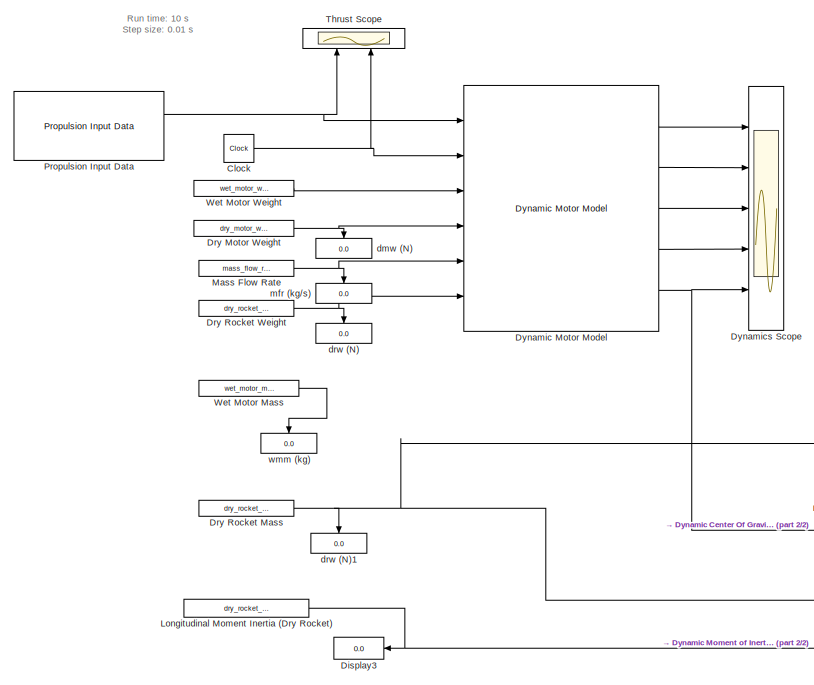
[diagram: root canvas - part 1/2, left side, full height]
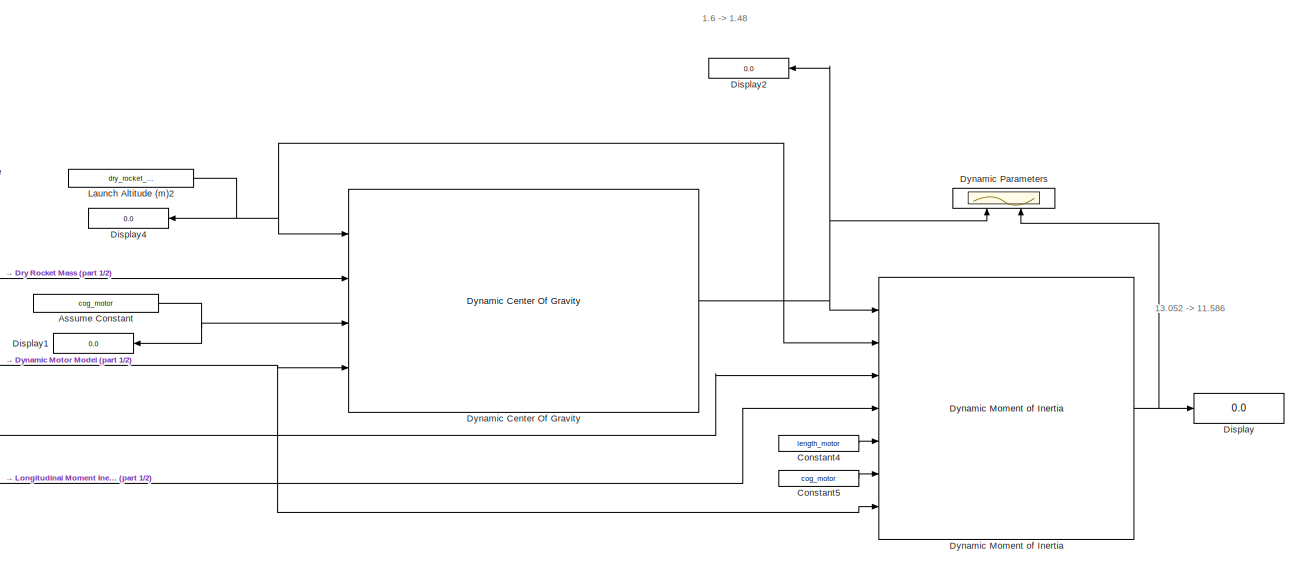
[diagram: root canvas - part 2/2, right side, full height]
MODEL slx_4fb8eae3f4b2
KIND model
CONFIG InitFcn = data_parametric_model
BLOCK [Constant] Assume Constant
  Value = cog_motor
BLOCK [Clock] Clock
  DisplayTime = on
BLOCK [Constant] Constant4
  Value = length_motor
BLOCK [Constant] Constant5
  Value = cog_motor
BLOCK [Display] Display
  Decimation = 1
  Ports = [1]
BLOCK [Display] Display1
  Decimation = 1
  Ports = [1]
BLOCK [Display] Display2
  Decimation = 1
  Ports = [1]
BLOCK [Display] Display3
  Decimation = 1
  Ports = [1]
BLOCK [Display] Display4
  Decimation = 1
  Ports = [1]
BLOCK [Constant] Dry Motor Weight
  Value = dry_motor_weight
BLOCK [Constant] Dry Rocket Mass
  Value = dry_rocket_mass
BLOCK [Constant] Dry Rocket Weight
  Value = dry_rocket_weight
BLOCK [Reference] Dynamic Center Of Gravity  REF=rocket_dynamic_data_library/Dynamic Center Of Gravity  (lib defined in slx_58be5b8ac4f4)
  Ports = [4, 1]
  SourceBlock = rocket_dynamic_data_library/Dynamic Center Of Gravity
  SourceType = SubSystem
BLOCK [Reference] Dynamic Moment of Inertia  REF=rocket_dynamic_data_library/Dynamic Moment of Inertia  (lib defined in slx_58be5b8ac4f4)
  Ports = [7, 1]
  SourceBlock = rocket_dynamic_data_library/Dynamic Moment of Inertia
  SourceType = SubSystem
BLOCK [Reference] Dynamic Motor Model  REF=rocket_dynamic_data_library/Dynamic Motor Model  (lib defined in slx_58be5b8ac4f4)
  Ports = [6, 5]
  SourceBlock = rocket_dynamic_data_library/Dynamic Motor Model
  SourceType = SubSystem
BLOCK [Scope] Dynamic Parameters
  DataFormat = StructureWithTime
  Floating = off
  NumInputPorts = 2
  Ports = [2]
  SampleTime = 0
  ShowLegends = off
  YMax = 139.531~1368.8
  YMin = 126.243~1238.44
BLOCK [Scope] Dynamics Scope
  DataFormat = StructureWithTime
  Floating = off
  NumInputPorts = 5
  Ports = [5]
  SampleTime = 0
  SaveName = ScopeData1
  ShowLegends = off
  YMax = 139.531~1368.8~856.01~5~5
  YMin = 126.243~1238.44~774.486~-5~-5
BLOCK [Constant] Launch Altitude (m)2
  Value = dry_rocket_cog
BLOCK [Constant] Longitudinal Moment Inertia (Dry Rocket)
  Value = dry_rocket_moi
BLOCK [Constant] Mass Flow Rate
  Value = mass_flow_rate
BLOCK [Reference] Propulsion Input Data  REF=rocket_dynamic_data_library/Propulsion Input Data  (lib defined in slx_58be5b8ac4f4)
  Ports = [0, 2]
  SourceBlock = rocket_dynamic_data_library/Propulsion Input Data
  SourceType = SubSystem
BLOCK [Scope] Thrust Scope
  DataFormat = StructureWithTime
  Floating = off
  NumInputPorts = 2
  Ports = [2]
  SampleTime = 0
  SaveName = ScopeData2
  ShowLegends = off
  YMax = 139.531~1368.8
  YMin = 126.243~1238.44
BLOCK [Constant] Wet Motor Mass
  Value = wet_motor_mass
BLOCK [Constant] Wet Motor Weight
  Value = wet_motor_weight
BLOCK [Display] dmw (N)
  Decimation = 1
  Ports = [1]
BLOCK [Display] drw (N)
  Decimation = 1
  Ports = [1]
BLOCK [Display] drw (N)1
  Decimation = 1
  Ports = [1]
BLOCK [Display] mfr (kg//s)
  Decimation = 1
  Ports = [1]
BLOCK [Display] wmm (kg)
  Decimation = 1
  Ports = [1]
ANNOTATION (root): 1.6 -> 1.48
ANNOTATION (root): 13.052 -> 11.586
ANNOTATION (root): Run time: 10 s Step size: 0.01 s
NET Assume Constant:1 -> Display1:1, Dynamic Center Of Gravity:3
NET Clock:1 -> Dynamic Motor Model:2, Thrust Scope:2
LINE Constant4:1 -> Dynamic Moment of Inertia:5
LINE Constant5:1 -> Dynamic Moment of Inertia:6
NET Dry Motor Weight:1 -> Dynamic Motor Model:4, dmw (N):1
NET Dry Rocket Mass:1 -> Dynamic Center Of Gravity:2, Dynamic Moment of Inertia:3, drw (N)1:1
NET Dry Rocket Weight:1 -> Dynamic Motor Model:6, drw (N):1
NET Dynamic Center Of Gravity:1 -> Display2:1, Dynamic Moment of Inertia:1, Dynamic Parameters:1
NET Dynamic Moment of Inertia:1 -> Display:1, Dynamic Parameters:2
LINE Dynamic Motor Model:1 -> Dynamics Scope:1
LINE Dynamic Motor Model:2 -> Dynamics Scope:2
LINE Dynamic Motor Model:3 -> Dynamics Scope:3
LINE Dynamic Motor Model:4 -> Dynamics Scope:4
NET Dynamic Motor Model:5 -> Dynamic Center Of Gravity:4, Dynamic Moment of Inertia:7, Dynamics Scope:5
NET Launch Altitude (m)2:1 -> Display4:1, Dynamic Center Of Gravity:1, Dynamic Moment of Inertia:2
NET Longitudinal Moment Inertia (Dry Rocket):1 -> Display3:1, Dynamic Moment of Inertia:4
NET Mass Flow Rate:1 -> Dynamic Motor Model:5, mfr (kg//s):1
NET Propulsion Input Data:1 -> Dynamic Motor Model:1, Thrust Scope:1
LINE Wet Motor Mass:1 -> wmm (kg):1
LINE Wet Motor Weight:1 -> Dynamic Motor Model:3
note: NET lines group one-source signal fan-out (src -> all destinations, sorted); 1:1 wires keep LINE
